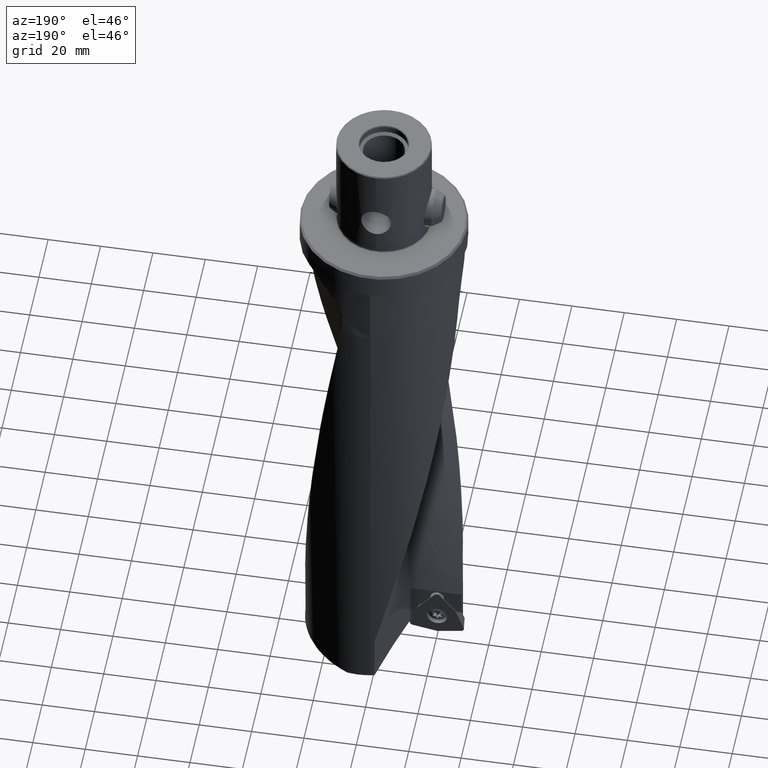
[diagram: clean part render]
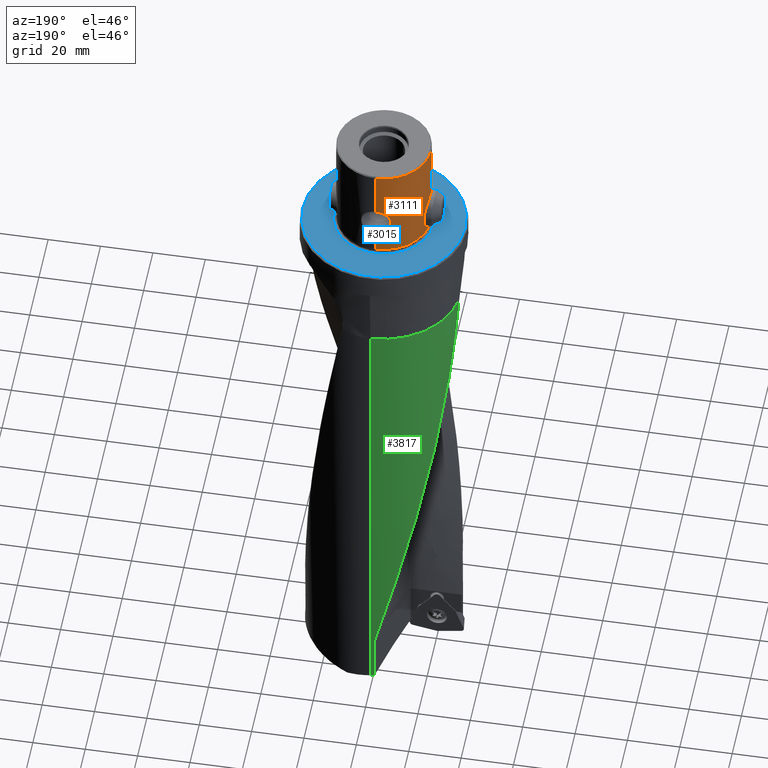
[diagram: same view with three faces highlighted in distinct colors, each labeled with its STEP entity id]
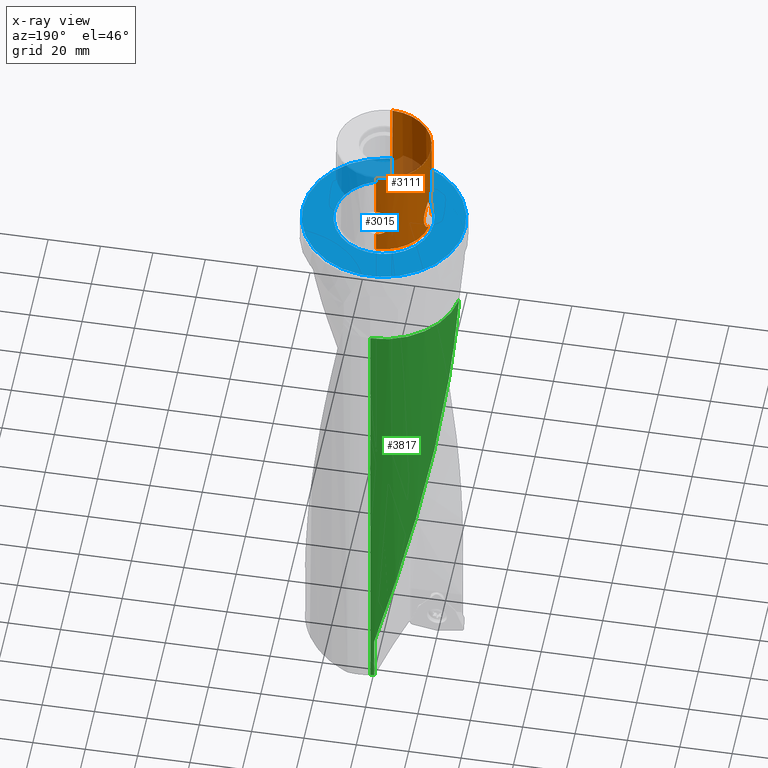
[diagram: x-ray of the same camera — body ghosted, the three highlighted faces saturated]
A machine part, auxiliary view with three faces highlighted in distinct colors.
The next image is the same camera in x-ray (body ghosted, the three faces saturated) — at least one of them is partly hidden behind the body in this view.
Their STEP definitions:

[orange] entity #3111 — the highlighted cylindrical surface (partial cylindrical patch) has radius 18 mm, axis along (-0, -0, 1).
#1987=VERTEX_POINT('NONE',#5541);
#2541=VERTEX_POINT('NONE',#6160);
#2591=VERTEX_POINT('NONE',#6213);
#2801=VERTEX_POINT('NONE',#6444);
#3021=EDGE_CURVE('NONE',#3777,#3293,#6685,.F.);
#3079=EDGE_CURVE('NONE',#2591,#1987,#6751,.T.);
#3111=ADVANCED_FACE('NONE',(#6788),#6789,.T.);
#3155=EDGE_CURVE('NONE',#4681,#3521,#6836,.T.);
#3261=EDGE_CURVE('NONE',#3521,#2801,#6954,.F.);
#3279=EDGE_CURVE('NONE',#5027,#3293,#6974,.T.);
#3293=VERTEX_POINT('NONE',#6989);
#3349=VERTEX_POINT('NONE',#7050);
#3421=EDGE_CURVE('NONE',#3349,#5027,#7125,.T.);
#3521=VERTEX_POINT('NONE',#7241);
#3643=EDGE_CURVE('NONE',#1987,#2541,#7373,.F.);
#3777=VERTEX_POINT('NONE',#7521);
#3923=EDGE_CURVE('NONE',#3349,#2591,#7686,.F.);
#4437=EDGE_CURVE('NONE',#2541,#4681,#8264,.F.);
#4513=EDGE_CURVE('NONE',#2801,#5181,#8351,.F.);
#4559=EDGE_CURVE('NONE',#3777,#5181,#8401,.T.);
#4681=VERTEX_POINT('NONE',#8534);
#5027=VERTEX_POINT('NONE',#8909);
#5181=VERTEX_POINT('NONE',#9079);
#5541=CARTESIAN_POINT('',(9.80585659625926E-023,18.0,9.55879787772688));
#6160=CARTESIAN_POINT('',(-5.69356628233995,17.0758104635944,15.5));
#6213=CARTESIAN_POINT('',(0.0,18.0,1.4854414910644));
#6444=CARTESIAN_POINT('',(-18.0,4.28626860567161E-014,39.6425));
#6685=CIRCLE('',#26749,18.0);
#6751=LINE('',#28663,#28664);
#6788=FACE_OUTER_BOUND('',#30287,.T.);
#6789=CYLINDRICAL_SURFACE('',#30288,18.0);
#6836=LINE('',#30405,#30406);
#6954=CIRCLE('',#30609,18.0);
#6974=B_SPLINE_CURVE_WITH_KNOTS('',3,(#30657,#30658,#30659,#30660,#30661,#30662,#30663,#30664,#30665,#30666,#30667,#30668,#30669,#30670,#30671,#30672,#30673,#30674,#30675,#30676,#30677,#30678,#30679,#30680,#30681,#30682,#30683,#30684,#30685,#30686,#30687,#30688,#30689,#30690,#30691,#30692,#30693,#30694),.UNSPECIFIED.,.F.,.F.,(4,2,2,2,2,2,2,2,2,2,2,2,2,2,2,2,2,2,4),(10.1815861341197,11.6599518790791,13.1383176240385,14.616683368998,16.0950491139574,17.5734148589168,19.0100370837272,20.4466593085375,21.8832815333479,23.3199037581582,24.7136002526975,26.1072967472367,27.500993241776,28.8946897363153,30.4171507069482,31.9396116775811,33.462072648214,34.984533618847,36.4628993638064),.UNSPECIFIED.);
#6989=CARTESIAN_POINT('',(-17.8043430932571,-2.6467653877119,1.48544149106438));
#7050=CARTESIAN_POINT('',(-17.804343093257,2.64676538771198,1.48544149106438));
#7125=B_SPLINE_CURVE_WITH_KNOTS('',3,(#31773,#31774,#31775,#31776,#31777,#31778,#31779,#31780,#31781,#31782,#31783,#31784,#31785,#31786,#31787,#31788,#31789,#31790,#31791,#31792,#31793,#31794,#31795,#31796,#31797,#31798,#31799,#31800,#31801,#31802,#31803,#31804,#31805,#31806,#31807,#31808,#31809,#31810,#31811),.UNSPECIFIED.,.F.,.F.,(4,2,2,2,2,2,2,2,2,3,2,2,2,2,2,2,2,2,4),(-13.182412849712,-11.6599518790791,-10.1815861341197,-8.70322038916025,-7.22485464420082,-5.74648889924138,-4.30986667443104,-2.87324444962069,-1.43662222481035,0.0,1.43662222481035,2.8732444496207,4.30986667443104,5.74648889924139,7.22485464420082,8.70322038916025,10.1815861341197,11.6599518790791,13.1383176240385),.UNSPECIFIED.);
#7241=CARTESIAN_POINT('',(0.0,18.0,39.6425));
#7373=B_SPLINE_CURVE_WITH_KNOTS('',3,(#34309,#34310,#34311,#34312,#34313,#34314,#34315,#34316,#34317,#34318,#34319,#34320,#34321,#34322,#34323,#34324,#34325,#34326,#34327,#34328,#34329,#34330,#34331,#34332,#34333,#34334),.UNSPECIFIED.,.F.,.F.,(4,2,2,2,2,2,2,2,2,2,2,2,4),(15.4895016594974,16.5754504066407,17.661399153784,18.7595942860197,19.8577894182555,20.9559845504912,22.0541796827269,23.1635417251366,24.2729037675463,25.382265809956,26.4916278523656,27.6009898947753,28.710351937185),.UNSPECIFIED.);
#7521=CARTESIAN_POINT('',(-2.20429143688028E-015,-18.0,1.4854414910644));
#7686=CIRCLE('',#36848,18.0);
#8264=B_SPLINE_CURVE_WITH_KNOTS('',3,(#45933,#45934,#45935,#45936,#45937,#45938,#45939,#45940,#45941,#45942,#45943,#45944,#45945,#45946,#45947,#45948,#45949,#45950,#45951,#45952,#45953,#45954,#45955,#45956,#45957,#45958),.UNSPECIFIED.,.F.,.F.,(4,2,2,2,2,2,2,2,2,2,2,2,4),(6.58724728273264,7.70897342981232,8.83069957689201,9.95242572397169,11.0741518710514,12.1958780181311,13.3176041652107,14.4035529123541,15.4895016594974,16.5754504066407,17.661399153784,18.7595942860197,19.8577894182555),.UNSPECIFIED.);
#8351=CIRCLE('',#46337,18.0);
#8401=LINE('',#47876,#47877);
#8534=CARTESIAN_POINT('',(-6.37674826686836E-016,18.0,21.4412021222732));
#8909=CARTESIAN_POINT('',(-18.0,4.28626855483155E-014,17.0800170173089));
#9079=CARTESIAN_POINT('',(-2.20429143688028E-015,-18.0,39.6425));
#26749=AXIS2_PLACEMENT_3D('',#54065,#54066,#54067);
#28663=CARTESIAN_POINT('',(0.0,18.0,41.2456338115894));
#28664=VECTOR('',#54171,1000.0);
#30287=EDGE_LOOP('',(#54208,#54209,#54210,#54211,#54212,#54213,#54214,#54215,#54216,#54217,#54218));
#30288=AXIS2_PLACEMENT_3D('',#54219,#54220,#54221);
#30405=CARTESIAN_POINT('',(0.0,18.0,41.2456338115894));
#30406=VECTOR('',#54271,1000.0);
#30609=AXIS2_PLACEMENT_3D('',#54399,#54400,#54401);
#30657=CARTESIAN_POINT('',(-17.9381854571745,1.49047056462458,16.9050437374288));
#30658=CARTESIAN_POINT('',(-17.9792444433209,0.996315413420211,17.0223382009149));
#30659=CARTESIAN_POINT('',(-18.0,0.492788581653186,17.0800170173088));
#30660=CARTESIAN_POINT('',(-18.0,-0.4927885816531,17.0800170173089));
#30661=CARTESIAN_POINT('',(-17.9792444433209,-0.996315413420125,17.0223382009149));
#30662=CARTESIAN_POINT('',(-17.8971264710282,-1.98462571582885,16.7877492739426));
#30663=CARTESIAN_POINT('',(-17.8358476133072,-2.46943710406643,16.6109275457802));
#30664=CARTESIAN_POINT('',(-17.684816826033,-3.38568012685324,16.1537765886362));
#30665=CARTESIAN_POINT('',(-17.5950517621029,-3.81815459413603,15.8730104140955));
#30666=CARTESIAN_POINT('',(-17.4054362135977,-4.60596799892034,15.2366414599743));
#30667=CARTESIAN_POINT('',(-17.3057763073523,-4.96133037641515,14.88101092784));
#30668=CARTESIAN_POINT('',(-17.1189621636771,-5.57135516295697,14.1481408481267));
#30669=CARTESIAN_POINT('',(-17.0248238083028,-5.85000353930991,13.7461962411485));
#30670=CARTESIAN_POINT('',(-16.8493433765772,-6.3377278956537,12.8819119248984));
#30671=CARTESIAN_POINT('',(-16.7681568466265,-6.54686267907296,12.4195738255464));
#30672=CARTESIAN_POINT('',(-16.6336800950198,-6.88136463966526,11.4624189348517));
#30673=CARTESIAN_POINT('',(-16.580435455678,-7.00693565732966,10.9669640472942));
#30674=CARTESIAN_POINT('',(-16.5100399432149,-7.17123199139228,9.97519687107101));
#30675=CARTESIAN_POINT('',(-16.4929411701886,-7.20991619623257,9.47887407493682));
#30676=CARTESIAN_POINT('',(-16.4929411701886,-7.20991619623257,8.53543450182028));
#30677=CARTESIAN_POINT('',(-16.5090251823763,-7.17350653340586,8.05355618485362));
#30678=CARTESIAN_POINT('',(-16.5755004717199,-7.01853920508615,7.08932696725165));
#30679=CARTESIAN_POINT('',(-16.6258479396858,-6.90001583444805,6.60696753543056));
#30680=CARTESIAN_POINT('',(-16.7535033540708,-6.58400831296491,5.67326372093249));
#30681=CARTESIAN_POINT('',(-16.8307711702097,-6.38633858943458,5.22132604147789));
#30682=CARTESIAN_POINT('',(-16.9985606792925,-5.92529438983565,4.37413198595462));
#30683=CARTESIAN_POINT('',(-17.0889395893585,-5.66186769525962,3.97887575548353));
#30684=CARTESIAN_POINT('',(-17.2750184518941,-5.06749128133921,3.2325665865199));
#30685=CARTESIAN_POINT('',(-17.3779962775797,-4.70896704991563,2.85949735873227));
#30686=CARTESIAN_POINT('',(-17.5749239827066,-3.9103928612417,2.19136037471923));
#30687=CARTESIAN_POINT('',(-17.6686659851465,-3.47032276401801,1.89625543715476));
#30688=CARTESIAN_POINT('',(-17.8268887447629,-2.53514094963674,1.4152123515952));
#30689=CARTESIAN_POINT('',(-17.891383186869,-2.03893013514184,1.22879423102238));
#30690=CARTESIAN_POINT('',(-17.9779854340821,-1.02511861354496,0.981132560839955));
#30691=CARTESIAN_POINT('',(-18.0,-0.507486990210932,0.919982982691202));
#30692=CARTESIAN_POINT('',(-18.0,0.492788581653184,0.919982982691202));
#30693=CARTESIAN_POINT('',(-17.9792444433209,0.996315413420207,0.977661799085159));
#30694=CARTESIAN_POINT('',(-17.9381854571745,1.49047056462457,1.0949562625713));
#31773=CARTESIAN_POINT('',(-17.9346843104755,-1.5320243743434,1.10496339593117));
#31774=CARTESIAN_POINT('',(-17.9779854340821,-1.02511861354496,0.981132560839955));
#31775=CARTESIAN_POINT('',(-18.0,-0.507486990210932,0.919982982691202));
#31776=CARTESIAN_POINT('',(-18.0,0.492788581653184,0.919982982691202));
#31777=CARTESIAN_POINT('',(-17.9792444433209,0.996315413420207,0.977661799085159));
#31778=CARTESIAN_POINT('',(-17.8971264710282,1.98462571582894,1.21225072605744));
#31779=CARTESIAN_POINT('',(-17.8358476133071,2.46943710406652,1.38907245421988));
#31780=CARTESIAN_POINT('',(-17.684816826033,3.38568012685333,1.84622341136386));
#31781=CARTESIAN_POINT('',(-17.5950517621028,3.81815459413612,2.12698958590456));
#31782=CARTESIAN_POINT('',(-17.4054362135976,4.60596799892042,2.76335854002575));
#31783=CARTESIAN_POINT('',(-17.3057763073523,4.96133037641523,3.11898907216009));
#31784=CARTESIAN_POINT('',(-17.1189621636771,5.57135516295705,3.85185915187334));
#31785=CARTESIAN_POINT('',(-17.0248238083027,5.85000353931,4.25380375885153));
#31786=CARTESIAN_POINT('',(-16.8493433765772,6.33772789565379,5.11808807510167));
#31787=CARTESIAN_POINT('',(-16.7681568466265,6.54686267907305,5.5804261744537));
#31788=CARTESIAN_POINT('',(-16.6336800950198,6.88136463966534,6.53758106514834));
#31789=CARTESIAN_POINT('',(-16.5804354556779,7.00693565732974,7.03303595270587));
#31790=CARTESIAN_POINT('',(-16.5100399432149,7.17123199139236,8.02480312892906));
#31791=CARTESIAN_POINT('',(-16.4929411701886,7.20991619623265,8.52112592506325));
#31792=CARTESIAN_POINT('',(-16.4929411701886,7.20991619623265,9.00000000000004));
#31793=CARTESIAN_POINT('',(-16.4929411701886,7.20991619623265,9.47887407493682));
#31794=CARTESIAN_POINT('',(-16.5100399432149,7.17123199139236,9.97519687107101));
#31795=CARTESIAN_POINT('',(-16.5804354556779,7.00693565732974,10.9669640472942));
#31796=CARTESIAN_POINT('',(-16.6336800950198,6.88136463966534,11.4624189348517));
#31797=CARTESIAN_POINT('',(-16.7681568466265,6.54686267907304,12.4195738255464));
#31798=CARTESIAN_POINT('',(-16.8493433765772,6.33772789565378,12.8819119248984));
#31799=CARTESIAN_POINT('',(-17.0248238083027,5.85000353930999,13.7461962411485));
#31800=CARTESIAN_POINT('',(-17.1189621636771,5.57135516295705,14.1481408481267));
#31801=CARTESIAN_POINT('',(-17.3057763073523,4.96133037641523,14.88101092784));
#31802=CARTESIAN_POINT('',(-17.4054362135976,4.60596799892042,15.2366414599743));
#31803=CARTESIAN_POINT('',(-17.5950517621028,3.81815459413611,15.8730104140955));
#31804=CARTESIAN_POINT('',(-17.684816826033,3.38568012685333,16.1537765886362));
#31805=CARTESIAN_POINT('',(-17.8358476133071,2.46943710406652,16.6109275457802));
#31806=CARTESIAN_POINT('',(-17.8971264710282,1.98462571582894,16.7877492739426));
#31807=CARTESIAN_POINT('',(-17.9792444433209,0.996315413420211,17.0223382009149));
#31808=CARTESIAN_POINT('',(-18.0,0.492788581653186,17.0800170173088));
#31809=CARTESIAN_POINT('',(-18.0,-0.4927885816531,17.0800170173089));
#31810=CARTESIAN_POINT('',(-17.9792444433209,-0.996315413420125,17.0223382009149));
#31811=CARTESIAN_POINT('',(-17.9381854571745,-1.49047056462449,16.9050437374288));
#34309=CARTESIAN_POINT('',(-5.28442982356118,17.2068242694536,17.7118943462783));
#34310=CARTESIAN_POINT('',(-5.42181249529968,17.1646323429185,17.3543935798473));
#34311=CARTESIAN_POINT('',(-5.52548032267389,17.1310880389451,16.9827105164619));
#34312=CARTESIAN_POINT('',(-5.66137349931924,17.0866603026007,16.2365091494415));
#34313=CARTESIAN_POINT('',(-5.69356628233993,17.0758104635945,15.8619829157145));
#34314=CARTESIAN_POINT('',(-5.69356628233993,17.0758104635945,15.1339349559215));
#34315=CARTESIAN_POINT('',(-5.66064433409824,17.0869084253821,14.7553178906001));
#34316=CARTESIAN_POINT('',(-5.52180384476175,17.1322799449915,14.0014058303821));
#34317=CARTESIAN_POINT('',(-5.41591976922342,17.1665178251019,13.6261023420102));
#34318=CARTESIAN_POINT('',(-5.13540303160754,17.252511608522,12.9047446724428));
#34319=CARTESIAN_POINT('',(-4.96056665723978,17.3042458187936,12.5581359986683));
#34320=CARTESIAN_POINT('',(-4.55529880862427,17.4153207746357,11.9146860240676));
#34321=CARTESIAN_POINT('',(-4.32482817564733,17.4745540020495,11.6178508316915));
#34322=CARTESIAN_POINT('',(-3.82883290751273,17.5899268521795,11.0866667378139));
#34323=CARTESIAN_POINT('',(-3.54540938237947,17.650209299663,10.8342189663721));
#34324=CARTESIAN_POINT('',(-2.92382201699969,17.763757508664,10.3865421162251));
#34325=CARTESIAN_POINT('',(-2.58565660004085,17.8169112098376,10.1912868112923));
#34326=CARTESIAN_POINT('',(-1.87578248217186,17.9055685657282,9.87594414225162));
#34327=CARTESIAN_POINT('',(-1.50339602846674,17.9410731896435,9.7555841351973));
#34328=CARTESIAN_POINT('',(-0.750404529829355,17.9883073093774,9.59698766748921));
#34329=CARTESIAN_POINT('',(-0.369787347469852,18.0,9.5587978777269));
#34330=CARTESIAN_POINT('',(0.369787347469936,18.0,9.5587978777269));
#34331=CARTESIAN_POINT('',(0.75040452982944,17.9883073093774,9.59698766748921));
#34332=CARTESIAN_POINT('',(1.50339602846682,17.9410731896435,9.7555841351973));
#34333=CARTESIAN_POINT('',(1.87578248217195,17.9055685657282,9.87594414225162));
#34334=CARTESIAN_POINT('',(2.23071954110643,17.8612398877829,10.033615476772));
#36848=AXIS2_PLACEMENT_3D('',#55278,#55279,#55280);
#45933=CARTESIAN_POINT('',(2.25279107753622,17.8584694854003,20.9565224189814));
#45934=CARTESIAN_POINT('',(1.89491494575553,17.9036144672985,21.1173628962053));
#45935=CARTESIAN_POINT('',(1.51908254637312,17.9398316082824,21.2402147493768));
#45936=CARTESIAN_POINT('',(0.75858582938665,17.9880437362194,21.4021586469409));
#45937=CARTESIAN_POINT('',(0.373908715693273,18.0,21.4412021222732));
#45938=CARTESIAN_POINT('',(-0.373908715693183,18.0,21.4412021222732));
#45939=CARTESIAN_POINT('',(-0.75858582938656,17.9880437362194,21.4021586469409));
#45940=CARTESIAN_POINT('',(-1.51908254637303,17.9398316082824,21.2402147493768));
#45941=CARTESIAN_POINT('',(-1.89491494575544,17.9036144672985,21.1173628962053));
#45942=CARTESIAN_POINT('',(-2.61066720931681,17.8133245035021,20.7956819417575));
#45943=CARTESIAN_POINT('',(-2.95128155653606,17.759250828407,20.5965697933436));
#45944=CARTESIAN_POINT('',(-3.57651821044014,17.6439669660571,20.1402040348808));
#45945=CARTESIAN_POINT('',(-3.86114131056786,17.5828727885998,19.8829222141171));
#45946=CARTESIAN_POINT('',(-4.35275081283672,17.4675486518168,19.3476120853785));
#45947=CARTESIAN_POINT('',(-4.57862384598827,17.4091533183636,19.0523646371396));
#45948=CARTESIAN_POINT('',(-4.97575337510767,17.2998350840229,18.4132534612545));
#45949=CARTESIAN_POINT('',(-5.14704715182296,17.2490161959887,18.0693951127094));
#45950=CARTESIAN_POINT('',(-5.42181249529968,17.1646323429185,17.3543935798473));
#45951=CARTESIAN_POINT('',(-5.52548032267389,17.1310880389451,16.9827105164619));
#45952=CARTESIAN_POINT('',(-5.66137349931924,17.0866603026007,16.2365091494415));
#45953=CARTESIAN_POINT('',(-5.69356628233993,17.0758104635945,15.8619829157145));
#45954=CARTESIAN_POINT('',(-5.69356628233993,17.0758104635945,15.1339349559215));
#45955=CARTESIAN_POINT('',(-5.66064433409824,17.0869084253821,14.7553178906001));
#45956=CARTESIAN_POINT('',(-5.52180384476175,17.1322799449915,14.0014058303821));
#45957=CARTESIAN_POINT('',(-5.41591976922342,17.1665178251019,13.6261023420102));
#45958=CARTESIAN_POINT('',(-5.27566140041533,17.209514716812,13.2654235072266));
#46337=AXIS2_PLACEMENT_3D('',#56098,#56099,#56100);
#47876=CARTESIAN_POINT('',(-2.20429143688028E-015,-18.0,41.2456338115894));
#47877=VECTOR('',#56147,1000.0);
#54065=CARTESIAN_POINT('',(0.0,0.0,1.48544149106439));
#54066=DIRECTION('',(0.0,-0.0,1.0));
#54067=DIRECTION('',(0.0,1.0,0.0));
#54171=DIRECTION('',(0.0,-0.0,1.0));
#54208=ORIENTED_EDGE('',*,*,#3021,.F.);
#54209=ORIENTED_EDGE('',*,*,#4559,.T.);
#54210=ORIENTED_EDGE('',*,*,#4513,.F.);
#54211=ORIENTED_EDGE('',*,*,#3261,.F.);
#54212=ORIENTED_EDGE('',*,*,#3155,.F.);
#54213=ORIENTED_EDGE('',*,*,#4437,.F.);
#54214=ORIENTED_EDGE('',*,*,#3643,.F.);
#54215=ORIENTED_EDGE('',*,*,#3079,.F.);
#54216=ORIENTED_EDGE('',*,*,#3923,.F.);
#54217=ORIENTED_EDGE('',*,*,#3421,.T.);
#54218=ORIENTED_EDGE('',*,*,#3279,.T.);
#54219=CARTESIAN_POINT('',(0.0,0.0,41.2456338115894));
#54220=DIRECTION('',(-0.0,-0.0,1.0));
#54221=DIRECTION('',(0.0,1.0,0.0));
#54271=DIRECTION('',(0.0,-0.0,1.0));
#54399=CARTESIAN_POINT('',(0.0,0.0,39.6425));
#54400=DIRECTION('',(0.0,0.0,-1.0));
#54401=DIRECTION('',(0.0,1.0,0.0));
#55278=CARTESIAN_POINT('',(0.0,0.0,1.48544149106439));
#55279=DIRECTION('',(0.0,-0.0,1.0));
#55280=DIRECTION('',(0.0,1.0,0.0));
#56098=CARTESIAN_POINT('',(0.0,0.0,39.6425));
#56099=DIRECTION('',(0.0,0.0,-1.0));
#56100=DIRECTION('',(0.0,1.0,0.0));
#56147=DIRECTION('',(0.0,-0.0,1.0));

[blue] entity #3015 — the highlighted planar face has unit normal (-0, 0, 1).
#2093=VERTEX_POINT('NONE',#5658);
#2143=EDGE_CURVE('NONE',#2223,#2207,#5713,.T.);
#2207=VERTEX_POINT('NONE',#5785);
#2223=VERTEX_POINT('NONE',#5803);
#2609=EDGE_CURVE('NONE',#3467,#2093,#6234,.T.);
#3015=ADVANCED_FACE('NONE',(#6677,#6678),#6679,.T.);
#3407=EDGE_CURVE('NONE',#2207,#2223,#7111,.T.);
#3467=VERTEX_POINT('NONE',#7181);
#4685=EDGE_CURVE('NONE',#2093,#3467,#8539,.F.);
#5658=CARTESIAN_POINT('',(-19.0122364103074,4.76013350225697E-014,0.0));
#5713=CIRCLE('',#14008,31.0);
#5785=CARTESIAN_POINT('',(-31.0,7.47120430571926E-014,0.0));
#5803=CARTESIAN_POINT('',(31.0,-7.08698406220749E-014,0.0));
#6234=CIRCLE('',#24136,19.0122364103074);
#6677=FACE_OUTER_BOUND('',#26740,.T.);
#6678=FACE_BOUND('',#26741,.T.);
#6679=PLANE('',#26742);
#7111=CIRCLE('',#31755,31.0);
#7181=CARTESIAN_POINT('',(19.0122364103074,-4.52730844717262E-014,0.0));
#8539=CIRCLE('',#48137,19.0122364103074);
#14008=AXIS2_PLACEMENT_3D('',#52977,#52978,#52979);
#24136=AXIS2_PLACEMENT_3D('',#53586,#53587,#53588);
#26740=EDGE_LOOP('',(#54058,#54059));
#26741=EDGE_LOOP('',(#54060,#54061));
#26742=AXIS2_PLACEMENT_3D('',#54062,#54063,#54064);
#31755=AXIS2_PLACEMENT_3D('',#54565,#54566,#54567);
#48137=AXIS2_PLACEMENT_3D('',#56300,#56301,#56302);
#52977=CARTESIAN_POINT('',(0.0,0.0,0.0));
#52978=DIRECTION('',(0.0,0.0,-1.0));
#52979=DIRECTION('',(-1.0,2.38126033648422E-015,0.0));
#53586=CARTESIAN_POINT('',(0.0,0.0,0.0));
#53587=DIRECTION('',(-0.0,0.0,1.0));
#53588=DIRECTION('',(1.0,-2.38126033648423E-015,0.0));
#54058=ORIENTED_EDGE('',*,*,#3407,.F.);
#54059=ORIENTED_EDGE('',*,*,#2143,.F.);
#54060=ORIENTED_EDGE('',*,*,#2609,.F.);
#54061=ORIENTED_EDGE('',*,*,#4685,.F.);
#54062=CARTESIAN_POINT('',(-18.0,0.0,0.0));
#54063=DIRECTION('',(-0.0,0.0,1.0));
#54064=DIRECTION('',(0.0,1.0,0.0));
#54565=CARTESIAN_POINT('',(0.0,0.0,0.0));
#54566=DIRECTION('',(0.0,0.0,-1.0));
#54567=DIRECTION('',(-1.0,2.38126033648422E-015,0.0));
#56300=CARTESIAN_POINT('',(0.0,0.0,0.0));
#56301=DIRECTION('',(0.0,0.0,-1.0));
#56302=DIRECTION('',(1.0,-2.38126033648423E-015,0.0));

[green] entity #3817 — the highlighted cylindrical surface (partial cylindrical patch) has radius 29.7375 mm, axis along (-0, -0, 1).
#2159=VERTEX_POINT('NONE',#5732);
#2931=EDGE_CURVE('NONE',#2159,#4985,#6584,.F.);
#2987=VERTEX_POINT('NONE',#6649);
#3257=EDGE_CURVE('NONE',#4511,#5273,#6950,.T.);
#3817=ADVANCED_FACE('NONE',(#7566),#7567,.T.);
#3947=EDGE_CURVE('NONE',#4985,#4511,#7711,.T.);
#4511=VERTEX_POINT('NONE',#8349);
#4569=EDGE_CURVE('NONE',#2987,#5273,#8411,.T.);
#4853=EDGE_CURVE('NONE',#2987,#2159,#8718,.T.);
#4985=VERTEX_POINT('NONE',#8861);
#5273=VERTEX_POINT('NONE',#9178);
#5732=CARTESIAN_POINT('',(-1.4909474547684,29.7001007058414,-216.994480196584));
#6584=LINE('',#25782,#25783);
#6649=CARTESIAN_POINT('',(0.0,29.7375,-217.255606360389));
#6950=CIRCLE('',#30602,29.7375);
#7566=FACE_OUTER_BOUND('',#35056,.T.);
#7567=CYLINDRICAL_SURFACE('',#35057,29.7375);
#7711=B_SPLINE_CURVE_WITH_KNOTS('',3,(#36880,#36881,#36882,#36883,#36884,#36885,#36886,#36887,#36888,#36889,#36890,#36891,#36892,#36893,#36894,#36895,#36896,#36897,#36898,#36899,#36900,#36901,#36902,#36903,#36904,#36905,#36906,#36907,#36908,#36909,#36910,#36911,#36912,#36913),.UNSPECIFIED.,.F.,.F.,(4,3,3,3,3,3,3,3,3,3,3,4),(0.0,0.0822433258031443,0.167600249532914,0.299622441581797,0.377430775859592,0.471229051547548,0.587736259243783,0.672731350662995,0.765674105095843,0.853375468770302,0.94098762084287,1.0),.UNSPECIFIED.);
#8349=CARTESIAN_POINT('',(-29.4320654798112,4.25116782097626,-35.0042168745511));
#8411=LINE('',#47891,#47892);
#8718=B_SPLINE_CURVE_WITH_KNOTS('',3,(#48564,#48565,#48566,#48567),.UNSPECIFIED.,.F.,.F.,(4,4),(0.844310184892573,0.983378890363347),.UNSPECIFIED.);
#8861=CARTESIAN_POINT('',(-1.4909474547684,29.7001007058414,-198.976627042093));
#9178=CARTESIAN_POINT('',(0.0,29.7375,-35.0042168745511));
#25782=CARTESIAN_POINT('',(-1.4909474547684,29.7001007058414,19.1374973745012));
#25783=VECTOR('',#53955,1.0);
#30602=AXIS2_PLACEMENT_3D('',#54395,#54396,#54397);
#35056=EDGE_LOOP('',(#55096,#55097,#55098,#55099,#55100));
#35057=AXIS2_PLACEMENT_3D('',#55101,#55102,#55103);
#36880=CARTESIAN_POINT('',(-1.4909474547684,29.7001007058414,-198.976627042093));
#36881=CARTESIAN_POINT('',(-2.61443248243168,29.6437016666915,-194.481959740727));
#36882=CARTESIAN_POINT('',(-3.73205521024523,29.5236691273593,-189.986621789471));
#36883=CARTESIAN_POINT('',(-4.83800045509893,29.3413131581813,-185.490945476669));
#36884=CARTESIAN_POINT('',(-5.98581497977213,29.1520534899858,-180.825070204746));
#36885=CARTESIAN_POINT('',(-7.12603207998148,28.8946604595401,-176.160090159955));
#36886=CARTESIAN_POINT('',(-8.2476374037248,28.5708834918817,-171.495236336184));
#36887=CARTESIAN_POINT('',(-9.9824327429182,28.0700952354946,-164.280072053182));
#36888=CARTESIAN_POINT('',(-11.6599653618553,27.4158196464379,-157.061787478914));
#36889=CARTESIAN_POINT('',(-13.2763396347185,26.6093538469765,-149.846814315959));
#36890=CARTESIAN_POINT('',(-14.228962733829,26.1340567811251,-145.594612205418));
#36891=CARTESIAN_POINT('',(-15.1540560795362,25.6085415027045,-141.341862528058));
#36892=CARTESIAN_POINT('',(-16.0466091143466,25.0364782304015,-137.088541934486));
#36893=CARTESIAN_POINT('',(-17.1225855685703,24.3468535388503,-131.961145989975));
#36894=CARTESIAN_POINT('',(-18.1567843159269,23.5859304983242,-126.834577805953));
#36895=CARTESIAN_POINT('',(-19.1387371160557,22.7602207338266,-121.708424794892));
#36896=CARTESIAN_POINT('',(-20.3584245569326,21.7346033829367,-115.34120994833));
#36897=CARTESIAN_POINT('',(-21.4879787848171,20.6185140524108,-108.971303301345));
#36898=CARTESIAN_POINT('',(-22.5278016784534,19.4117762656144,-102.603926161669));
#36899=CARTESIAN_POINT('',(-23.2863799986448,18.5314291134005,-97.9587560233686));
#36900=CARTESIAN_POINT('',(-23.9933411173202,17.606267211649,-93.3136539492945));
#36901=CARTESIAN_POINT('',(-24.6418472516339,16.646268959654,-88.667591653929));
#36902=CARTESIAN_POINT('',(-25.3509934550592,15.5965038461481,-83.5870885356012));
#36903=CARTESIAN_POINT('',(-25.9935095601381,14.5007769461532,-78.5067772004426));
#36904=CARTESIAN_POINT('',(-26.5648715569713,13.3651227234027,-73.427381819999));
#36905=CARTESIAN_POINT('',(-27.1040123063478,12.2935123046493,-68.6344326092188));
#36906=CARTESIAN_POINT('',(-27.5764914954467,11.1930989154228,-63.8404301986803));
#36907=CARTESIAN_POINT('',(-27.9812786693455,10.068115527666,-59.0464831461674));
#36908=CARTESIAN_POINT('',(-28.3856540855396,8.94427649577692,-54.2574125936086));
#36909=CARTESIAN_POINT('',(-28.7239238887207,7.79015833589946,-49.4698691439363));
#36910=CARTESIAN_POINT('',(-28.9904204075638,6.62377768669114,-44.6813125468087));
#36911=CARTESIAN_POINT('',(-29.1699228309377,5.83814583672118,-41.4559138910262));
#36912=CARTESIAN_POINT('',(-29.3170827683377,5.04722641843678,-38.2300012496177));
#36913=CARTESIAN_POINT('',(-29.4320654798112,4.25116782097626,-35.0042168745511));
#47891=CARTESIAN_POINT('',(0.0,29.7375,19.1374973745012));
#47892=VECTOR('',#56152,1000.0);
#48564=CARTESIAN_POINT('',(-5.97438765126412E-015,29.7375,-217.255606360389));
#48565=CARTESIAN_POINT('',(-0.497198326495293,29.7375,-217.168526577113));
#48566=CARTESIAN_POINT('',(-0.994419870061322,29.7250264307059,-217.081443995039));
#48567=CARTESIAN_POINT('',(-1.4909474547684,29.7001007058414,-216.994480196584));
#53955=DIRECTION('',(0.0,0.0,-1.0));
#54395=CARTESIAN_POINT('',(0.0,0.0,-35.0042168745511));
#54396=DIRECTION('',(0.0,0.0,-1.0));
#54397=DIRECTION('',(0.0,1.0,0.0));
#55096=ORIENTED_EDGE('',*,*,#4569,.F.);
#55097=ORIENTED_EDGE('',*,*,#4853,.T.);
#55098=ORIENTED_EDGE('',*,*,#2931,.T.);
#55099=ORIENTED_EDGE('',*,*,#3947,.T.);
#55100=ORIENTED_EDGE('',*,*,#3257,.T.);
#55101=CARTESIAN_POINT('',(0.0,0.0,19.1374973745012));
#55102=DIRECTION('',(-0.0,-0.0,1.0));
#55103=DIRECTION('',(0.0,1.0,0.0));
#56152=DIRECTION('',(0.0,-0.0,1.0));